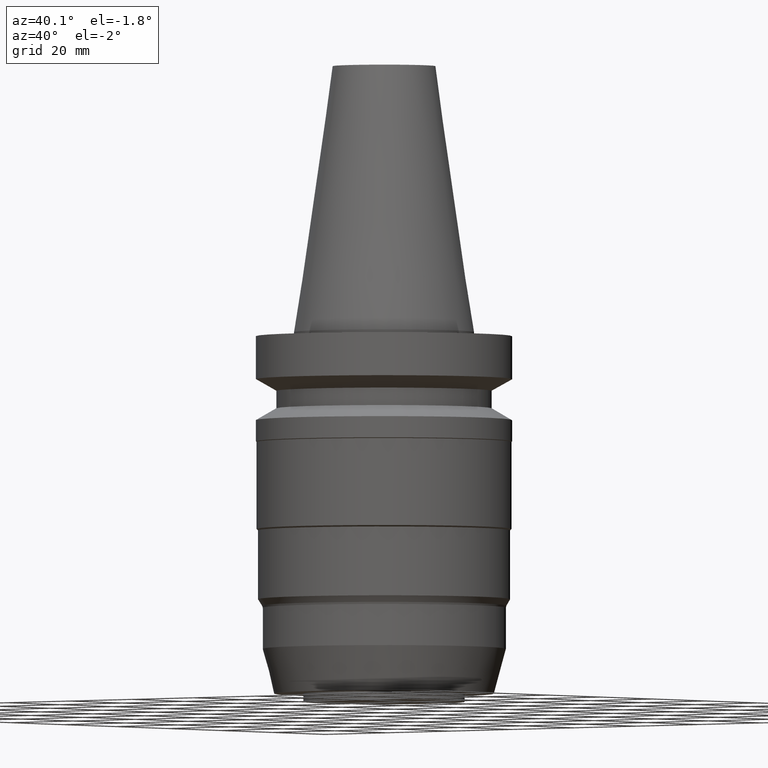
[diagram: clean part render]
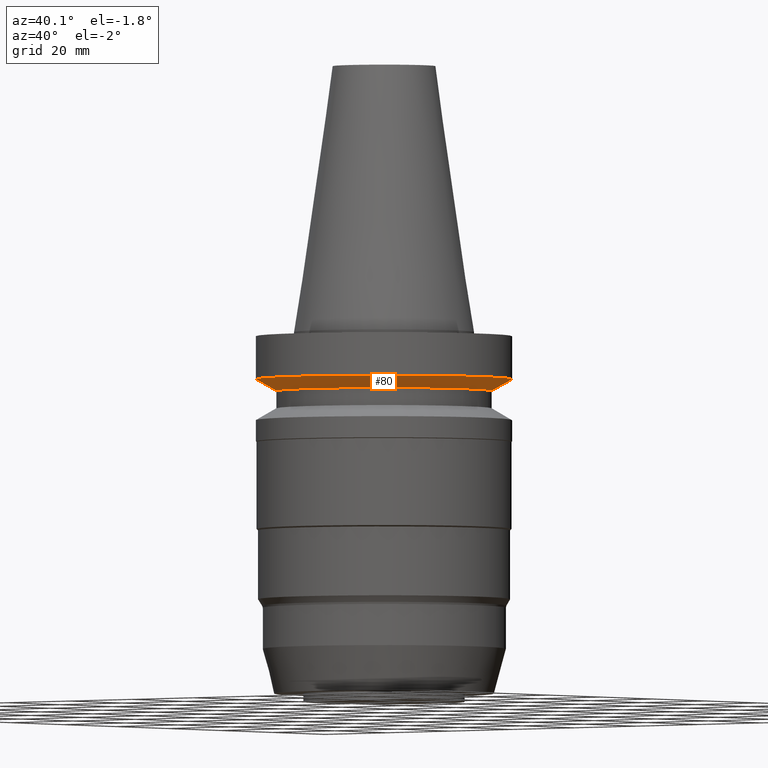
[diagram: same view with one face highlighted and labeled with its STEP entity id]
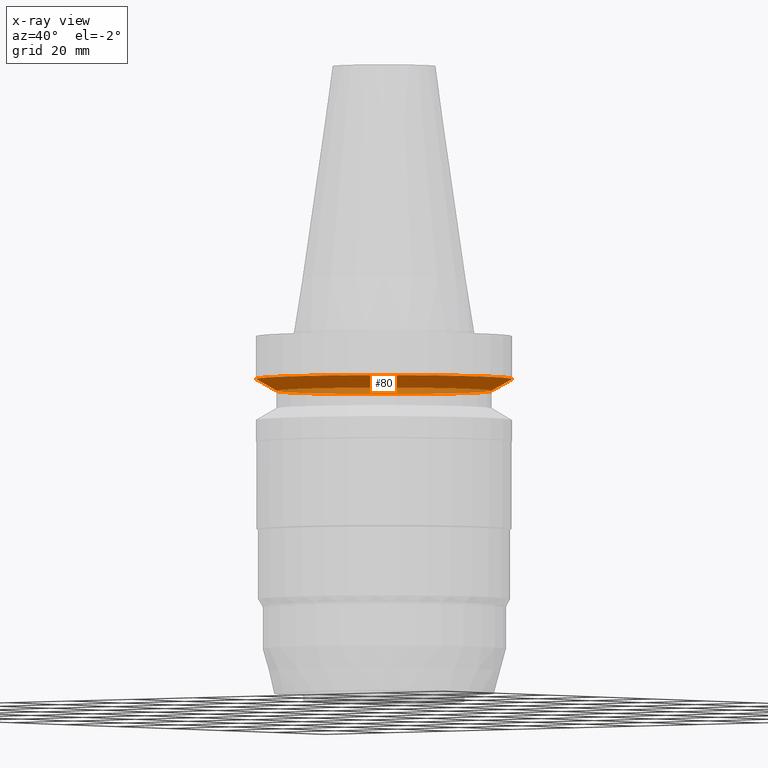
[diagram: x-ray of the same camera — body ghosted, the highlighted face saturated]
A machine part, auxiliary view. The second image highlights one B-rep face of the part: STEP entity #80.
The next image is the same camera in x-ray: the body ghosted, the highlighted face saturated — about 27% of this face is hidden behind the body in this view.
In plain terms, the highlighted conical surface has half-angle 60 deg.
Its self-contained STEP definition (entity closure, byte-faithful):
#80=ADVANCED_FACE('Unnamed[1]',(#205,#206),#207,.T.);
#115=EDGE_CURVE('Unnamed[1]',#261,#261,#262,.T.);
#117=EDGE_CURVE('Unnamed[1]',#264,#264,#265,.T.);
#205=FACE_BOUND('',#377,.T.);
#206=FACE_BOUND('',#378,.T.);
#207=CONICAL_SURFACE('',#379,28.9999999999999,1.04719755119657);
#261=VERTEX_POINT('',#446);
#262=CIRCLE('',#447,31.5000000000003);
#264=VERTEX_POINT('',#450);
#265=CIRCLE('',#451,26.4999999999994);
#377=EDGE_LOOP('',(#567));
#378=EDGE_LOOP('',(#568));
#379=AXIS2_PLACEMENT_3D('',#569,#570,#571);
#446=CARTESIAN_POINT('',(7.08182973902924E-016,31.5000000000004,-11.5655056526664));
#447=AXIS2_PLACEMENT_3D('',#633,#634,#635);
#450=CARTESIAN_POINT('',(8.8494551369045E-016,26.4999999999995,-14.4522569986152));
#451=AXIS2_PLACEMENT_3D('',#636,#637,#638);
#567=ORIENTED_EDGE('',*,*,#117,.F.);
#568=ORIENTED_EDGE('',*,*,#115,.T.);
#569=CARTESIAN_POINT('',(7.96564243796687E-016,4.45497840864128E-014,-13.0088813256408));
#570=DIRECTION('',(-6.12323399573677E-017,4.10767166376342E-016,1.0));
#571=DIRECTION('',(2.03250820441117E-032,1.0,-4.10767166376342E-016));
#633=CARTESIAN_POINT('',(7.08182973902923E-016,4.51426754216171E-014,-11.5655056526663));
#634=DIRECTION('',(6.12323399573676E-017,-4.10767166376342E-016,-1.0));
#635=DIRECTION('',(2.03250820441117E-032,1.0,-4.10767166376342E-016));
#636=CARTESIAN_POINT('',(8.84945513690449E-016,4.39568927512086E-014,-14.4522569986152));
#637=DIRECTION('',(6.12323399573677E-017,-4.10767166376342E-016,-1.0));
#638=DIRECTION('',(2.03250820441117E-032,1.0,-4.10767166376342E-016));